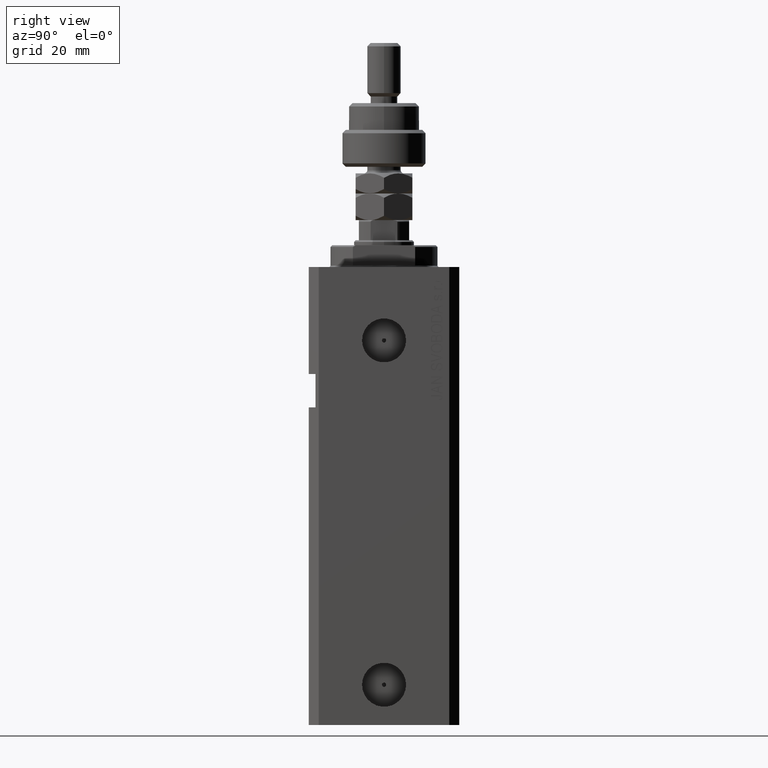
[diagram: clean part render]
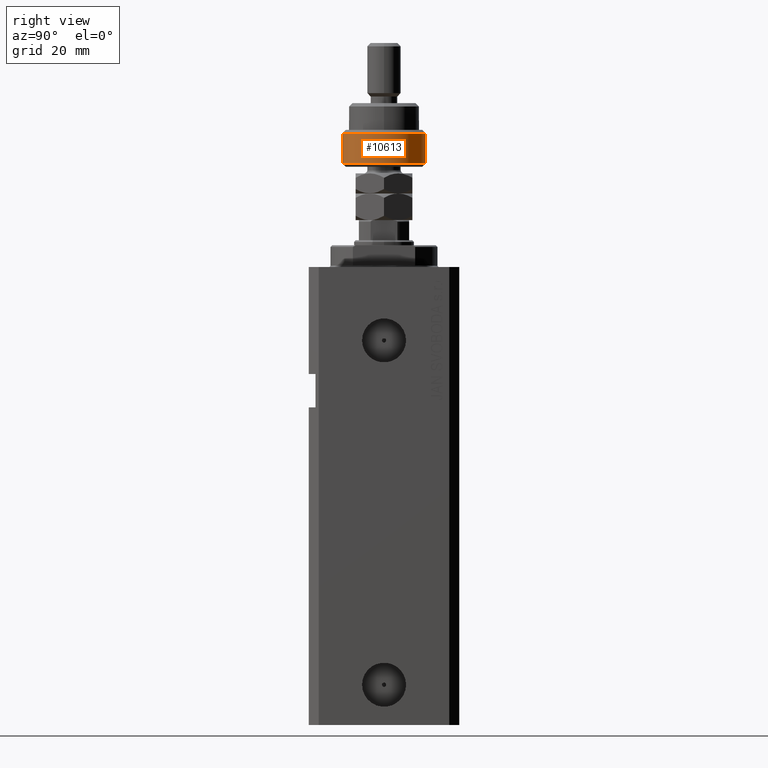
[diagram: same view with one face highlighted and labeled with its STEP entity id]
A machine part, right view. The second image highlights one B-rep face of the part: STEP entity #10613.
In plain terms, the highlighted cylindrical surface (partial cylindrical patch) has radius 12.5 mm, axis along (-0, -0, -1).
Its self-contained STEP definition (entity closure, byte-faithful):
#358 = FACE_OUTER_BOUND ( 'NONE', #15761, .T. ) ;
#696 = CARTESIAN_POINT ( 'NONE',  ( 0.000000000000000000, 0.000000000000000000, 10.00000000000000000 ) ) ;
#2088 = ORIENTED_EDGE ( 'NONE', *, *, #26990, .T. ) ;
#2670 = CARTESIAN_POINT ( 'NONE',  ( -11.22497216032182443, 5.500000000000000000, 12.50000000000000000 ) ) ;
#4495 = DIRECTION ( 'NONE',  ( -0.000000000000000000, -0.000000000000000000, -1.000000000000000000 ) ) ;
#6290 = CARTESIAN_POINT ( 'NONE',  ( -11.22497216032182088, -5.500000000000007105, 12.50000000000000000 ) ) ;
#6457 = CARTESIAN_POINT ( 'NONE',  ( -11.22497216032182088, -5.500000000000007105, 10.00000000000000000 ) ) ;
#9038 = DIRECTION ( 'NONE',  ( -0.000000000000000000, -0.000000000000000000, -1.000000000000000000 ) ) ;
#10613 = ADVANCED_FACE ( 'NONE', ( #358 ), #34057, .T. ) ;
#12705 = AXIS2_PLACEMENT_3D ( 'NONE', #30395, #4495, #44336 ) ;
#13762 = DIRECTION ( 'NONE',  ( -0.000000000000000000, -0.000000000000000000, 1.000000000000000000 ) ) ;
#15761 = EDGE_LOOP ( 'NONE', ( #20182, #35491, #32718, #38620, #2088 ) ) ;
#15847 = DIRECTION ( 'NONE',  ( -0.000000000000000000, -0.000000000000000000, 1.000000000000000000 ) ) ;
#16173 = VERTEX_POINT ( 'NONE', #6457 ) ;
#17557 = CIRCLE ( 'NONE', #28465, 12.50000000000000000 ) ;
#17671 = DIRECTION ( 'NONE',  ( 1.000000000000000000, 0.000000000000000000, 0.000000000000000000 ) ) ;
#19994 = CARTESIAN_POINT ( 'NONE',  ( 0.000000000000000000, 0.000000000000000000, 0.9999999999999956701 ) ) ;
#20096 = CIRCLE ( 'NONE', #20865, 12.50000000000000000 ) ;
#20182 = ORIENTED_EDGE ( 'NONE', *, *, #22975, .F. ) ;
#20225 = CARTESIAN_POINT ( 'NONE',  ( 12.50000000000000000, 0.000000000000000000, 0.9999999999999956701 ) ) ;
#20757 = LINE ( 'NONE', #2670, #23671 ) ;
#20865 = AXIS2_PLACEMENT_3D ( 'NONE', #19994, #15847, #34887 ) ;
#22975 = EDGE_CURVE ( 'NONE', #46552, #32252, #20757, .T. ) ;
#23671 = VECTOR ( 'NONE', #9038, 1000.000000000000000 ) ;
#24437 = EDGE_CURVE ( 'NONE', #16173, #38554, #29004, .T. ) ;
#26588 = DIRECTION ( 'NONE',  ( 0.000000000000000000, 0.000000000000000000, -1.000000000000000000 ) ) ;
#26990 = EDGE_CURVE ( 'NONE', #30622, #32252, #17557, .T. ) ;
#28465 = AXIS2_PLACEMENT_3D ( 'NONE', #29390, #13762, #17671 ) ;
#28744 = EDGE_CURVE ( 'NONE', #46552, #16173, #43329, .T. ) ;
#29004 = LINE ( 'NONE', #6290, #32272 ) ;
#29390 = CARTESIAN_POINT ( 'NONE',  ( 0.000000000000000000, 0.000000000000000000, 0.9999999999999956701 ) ) ;
#30014 = DIRECTION ( 'NONE',  ( 1.000000000000000000, 0.000000000000000000, 0.000000000000000000 ) ) ;
#30050 = CARTESIAN_POINT ( 'NONE',  ( -11.22497216032182443, 5.500000000000000000, 0.9999999999999956701 ) ) ;
#30395 = CARTESIAN_POINT ( 'NONE',  ( 0.000000000000000000, 0.000000000000000000, 11.00000000000000000 ) ) ;
#30622 = VERTEX_POINT ( 'NONE', #20225 ) ;
#32252 = VERTEX_POINT ( 'NONE', #30050 ) ;
#32272 = VECTOR ( 'NONE', #47331, 1000.000000000000000 ) ;
#32718 = ORIENTED_EDGE ( 'NONE', *, *, #24437, .T. ) ;
#34057 = CYLINDRICAL_SURFACE ( 'NONE', #12705, 12.50000000000000000 ) ;
#34887 = DIRECTION ( 'NONE',  ( 1.000000000000000000, 0.000000000000000000, 0.000000000000000000 ) ) ;
#35491 = ORIENTED_EDGE ( 'NONE', *, *, #28744, .T. ) ;
#37241 = EDGE_CURVE ( 'NONE', #38554, #30622, #20096, .T. ) ;
#38554 = VERTEX_POINT ( 'NONE', #47041 ) ;
#38620 = ORIENTED_EDGE ( 'NONE', *, *, #37241, .T. ) ;
#42552 = AXIS2_PLACEMENT_3D ( 'NONE', #696, #26588, #30014 ) ;
#43329 = CIRCLE ( 'NONE', #42552, 12.50000000000000000 ) ;
#44336 = DIRECTION ( 'NONE',  ( -1.000000000000000000, 0.000000000000000000, 0.000000000000000000 ) ) ;
#45710 = CARTESIAN_POINT ( 'NONE',  ( -11.22497216032182443, 5.500000000000000000, 10.00000000000000000 ) ) ;
#46552 = VERTEX_POINT ( 'NONE', #45710 ) ;
#47041 = CARTESIAN_POINT ( 'NONE',  ( -11.22497216032182088, -5.500000000000007105, 0.9999999999999956701 ) ) ;
#47331 = DIRECTION ( 'NONE',  ( -0.000000000000000000, -0.000000000000000000, -1.000000000000000000 ) ) ;